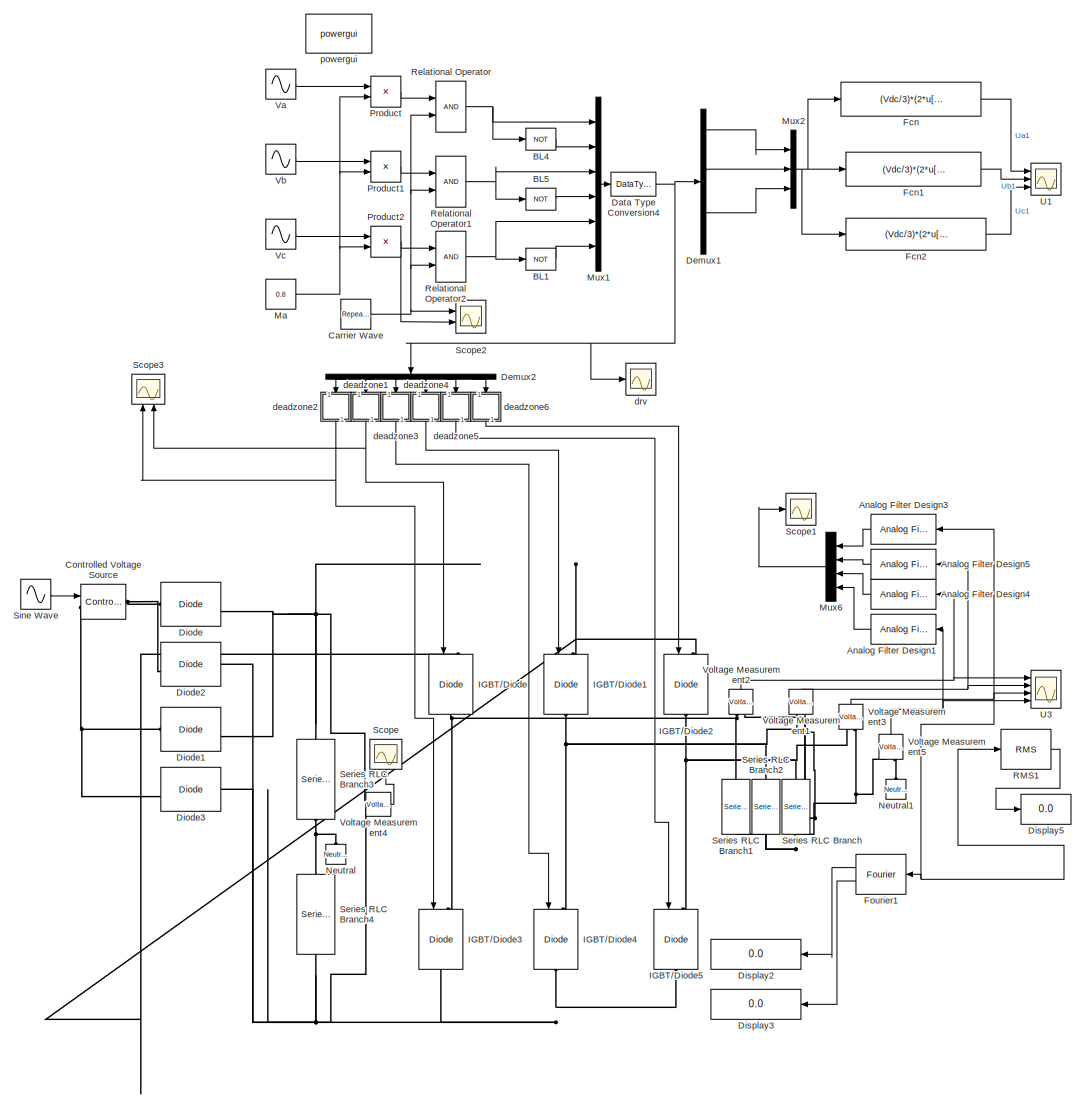
[diagram: root canvas - part 1/1, most of the canvas]
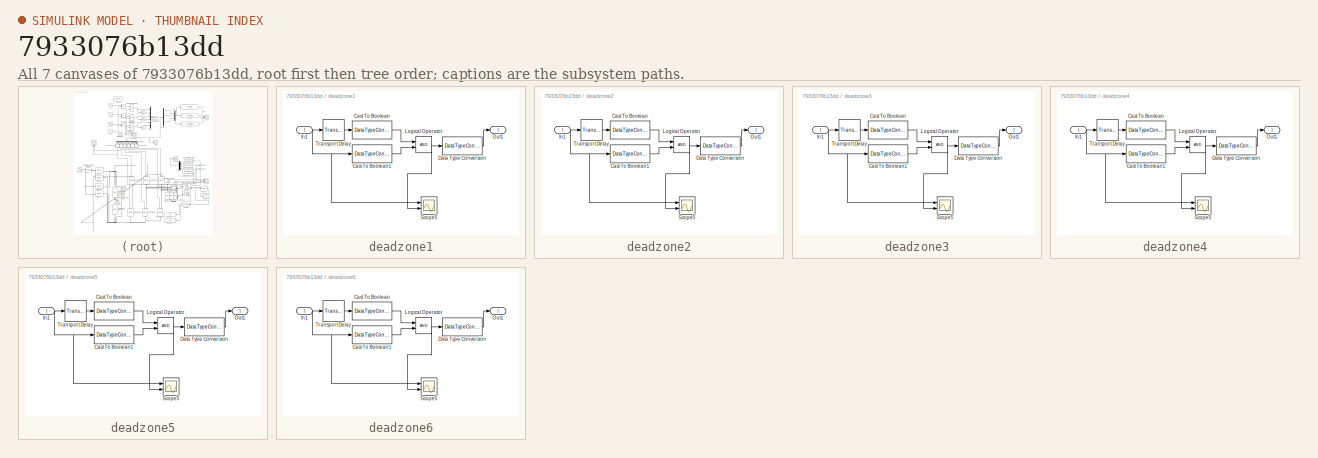
[diagram: thumbnail index - all 7 canvases of the model, root first then tree order]
MODEL slx_7933076b13dd
KIND model
CONFIG AbsTol = auto
CONFIG EnableMultiTasking = on
CONFIG FixedStep = auto
CONFIG InitFcn = f=50;\nVdc=500;\nMf=50;\nFc=f*Mf;\nT_dead=11e-6;\n\n\n\n
CONFIG MaxStep = 0.00001
CONFIG MinStep = auto
CONFIG RelTol = 1e-3
CONFIG SampleTimeConstraint = Unconstrained
CONFIG Solver = FixedStepAuto
CONFIG SolverName = FixedStepAuto
CONFIG StartTime = 0.0
CONFIG StopTime = 0.1
BLOCK [Reference] Analog Filter Design1  REF=dsparch4/Analog
Filter Design
  Ports = [1, 1]
  SourceBlock = dsparch4/Analog\nFilter Design
  SourceProductBaseCode = DS
  SourceType = Analog Filter Design
BLOCK [Reference] Analog Filter Design3  REF=dsparch4/Analog
Filter Design
  Ports = [1, 1]
  SourceBlock = dsparch4/Analog\nFilter Design
  SourceProductBaseCode = DS
  SourceType = Analog Filter Design
BLOCK [Reference] Analog Filter Design4  REF=dsparch4/Analog
Filter Design
  Ports = [1, 1]
  SourceBlock = dsparch4/Analog\nFilter Design
  SourceProductBaseCode = DS
  SourceType = Analog Filter Design
BLOCK [Reference] Analog Filter Design5  REF=dsparch4/Analog
Filter Design
  Ports = [1, 1]
  SourceBlock = dsparch4/Analog\nFilter Design
  SourceProductBaseCode = DS
  SourceType = Analog Filter Design
BLOCK [Logic] BL1
  Inputs = 1
  NameLocation = top
  Operator = NOT
  Ports = [1, 1]
BLOCK [Logic] BL4
  Inputs = 1
  NameLocation = top
  Operator = NOT
  Ports = [1, 1]
BLOCK [Logic] BL5
  Inputs = 1
  NameLocation = top
  Operator = NOT
  Ports = [1, 1]
BLOCK [Reference] Carrier Wave  REF=simulink/Sources/Repeating
Sequence
  Ports = [0, 1]
  SourceBlock = simulink/Sources/Repeating\nSequence
  SourceProductBaseCode = SL
  SourceType = Repeating table
BLOCK [Reference] Controlled Voltage Source  REF=powerlib/Electrical
Sources/Controlled Voltage Source
  Ports = [1, 0, 0, 0, 0, 1, 1]
  SourceBlock = powerlib/Electrical\nSources/Controlled Voltage Source
  SourceProductBaseCode = PS
  SourceType = Controlled Voltage Source
BLOCK [DataTypeConversion] Data Type Conversion4
  OutDataTypeStr = double
BLOCK [Demux] Demux1
  Outputs = 6
  Ports = [1, 6]
BLOCK [Demux] Demux2
  NameLocation = left
  Outputs = 6
  Ports = [1, 6]
BLOCK [Reference] Diode  REF=powerlib/Power
Electronics/Diode
  Ports = [0, 1, 0, 0, 0, 1, 1]
  SourceBlock = powerlib/Power\nElectronics/Diode
  SourceProductBaseCode = PS
  SourceType = Diode
BLOCK [Reference] Diode1  REF=powerlib/Power
Electronics/Diode
  Ports = [0, 1, 0, 0, 0, 1, 1]
  SourceBlock = powerlib/Power\nElectronics/Diode
  SourceProductBaseCode = PS
  SourceType = Diode
BLOCK [Reference] Diode2  REF=powerlib/Power
Electronics/Diode
  Ports = [0, 1, 0, 0, 0, 1, 1]
  SourceBlock = powerlib/Power\nElectronics/Diode
  SourceProductBaseCode = PS
  SourceType = Diode
BLOCK [Reference] Diode3  REF=powerlib/Power
Electronics/Diode
  Ports = [0, 1, 0, 0, 0, 1, 1]
  SourceBlock = powerlib/Power\nElectronics/Diode
  SourceProductBaseCode = PS
  SourceType = Diode
BLOCK [Display] Display2
  Decimation = 1
  Ports = [1]
BLOCK [Display] Display3
  Decimation = 1
  Ports = [1]
BLOCK [Display] Display5
  Decimation = 1
  Ports = [1]
BLOCK [Fcn] Fcn
  Expr = (Vdc/3)*(2*u[1]-u[2]-u[3])
BLOCK [Fcn] Fcn1
  Expr = (Vdc/3)*(2*u[2]-u[1]-u[3])
BLOCK [Fcn] Fcn2
  Expr = (Vdc/3)*(2*u[3]-u[2]-u[1])
BLOCK [Reference] Fourier1  REF=powerlib_meascontrol/Measurements/Fourier
  Ports = [1, 2]
  SourceBlock = powerlib_meascontrol/Measurements/Fourier
  SourceProductBaseCode = PS
  SourceType = Fourier
BLOCK [Reference] IGBT//Diode  REF=powerlib/Power
Electronics/IGBT//Diode
  NameLocation = left
  Ports = [1, 0, 0, 0, 0, 1, 1]
  SourceBlock = powerlib/Power\nElectronics/IGBT//Diode
  SourceProductBaseCode = PS
  SourceType = IGBT/Diode
BLOCK [Reference] IGBT//Diode1  REF=powerlib/Power
Electronics/IGBT//Diode
  NameLocation = left
  Ports = [1, 0, 0, 0, 0, 1, 1]
  SourceBlock = powerlib/Power\nElectronics/IGBT//Diode
  SourceProductBaseCode = PS
  SourceType = IGBT/Diode
BLOCK [Reference] IGBT//Diode2  REF=powerlib/Power
Electronics/IGBT//Diode
  NameLocation = left
  Ports = [1, 0, 0, 0, 0, 1, 1]
  SourceBlock = powerlib/Power\nElectronics/IGBT//Diode
  SourceProductBaseCode = PS
  SourceType = IGBT/Diode
BLOCK [Reference] IGBT//Diode3  REF=powerlib/Power
Electronics/IGBT//Diode
  NameLocation = left
  Ports = [1, 0, 0, 0, 0, 1, 1]
  SourceBlock = powerlib/Power\nElectronics/IGBT//Diode
  SourceProductBaseCode = PS
  SourceType = IGBT/Diode
BLOCK [Reference] IGBT//Diode4  REF=powerlib/Power
Electronics/IGBT//Diode
  NameLocation = left
  Ports = [1, 0, 0, 0, 0, 1, 1]
  SourceBlock = powerlib/Power\nElectronics/IGBT//Diode
  SourceProductBaseCode = PS
  SourceType = IGBT/Diode
BLOCK [Reference] IGBT//Diode5  REF=powerlib/Power
Electronics/IGBT//Diode
  NameLocation = left
  Ports = [1, 0, 0, 0, 0, 1, 1]
  SourceBlock = powerlib/Power\nElectronics/IGBT//Diode
  SourceProductBaseCode = PS
  SourceType = IGBT/Diode
BLOCK [Constant] Ma 
  Value = 0.8
BLOCK [Mux] Mux1
  DisplayOption = bar
  Inputs = 6
  Ports = [6, 1]
BLOCK [Mux] Mux2
  DisplayOption = bar
  Inputs = 3
  Ports = [3, 1]
BLOCK [Mux] Mux6
  DisplayOption = bar
  NameLocation = top
  Ports = [4, 1]
BLOCK [Reference] Neutral  REF=powerlib/Elements/Neutral
  AttributesFormatString = node %<NodeNumber>
  NameLocation = right
  Ports = [0, 0, 0, 0, 0, 1]
  SourceBlock = powerlib/Elements/Neutral
  SourceProductBaseCode = PS
  SourceType = Neutral
BLOCK [Reference] Neutral1  REF=powerlib/Elements/Neutral
  AttributesFormatString = node %<NodeNumber>
  NameLocation = right
  Ports = [0, 0, 0, 0, 0, 1]
  SourceBlock = powerlib/Elements/Neutral
  SourceProductBaseCode = PS
  SourceType = Neutral
BLOCK [Product] Product
  Ports = [2, 1]
BLOCK [Product] Product1
  Ports = [2, 1]
BLOCK [Product] Product2
  Ports = [2, 1]
BLOCK [Reference] RMS1  REF=powerlib_meascontrol/Measurements/RMS
  Ports = [1, 1]
  SourceBlock = powerlib_meascontrol/Measurements/RMS
  SourceProductBaseCode = PS
  SourceType = RMS
BLOCK [RelationalOperator] Relational Operator
  Ports = [2, 1]
BLOCK [RelationalOperator] Relational Operator1
  Ports = [2, 1]
BLOCK [RelationalOperator] Relational Operator2
  Ports = [2, 1]
BLOCK [Scope] Scope
  Floating = off
  NameLocation = right
  NumInputPorts = 1
  Ports = [1]
  ScopeSpecificationString = Simulink.scopes.TimeScopeBlockCfg('CurrentConfiguration', extmgr.ConfigurationSet(extmgr.Configuration('Core','General UI',true),extmgr.Configuration('Core','Source UI',true),extmgr.Configuration('Sources','WiredSimulink',true,'DataLoggingVariableName','ScopeData1'),extmgr.Configuration('Visuals','Time Domain',true,'SerializedDisplays',{struct('MinYLimReal','-77.1483','MaxYLimReal','694.33472','YL...<+1461ch>
BLOCK [Scope] Scope1
  Floating = off
  NumInputPorts = 1
  Ports = [1]
  ScopeSpecificationString = Simulink.scopes.TimeScopeBlockCfg('CurrentConfiguration', extmgr.ConfigurationSet(extmgr.Configuration('Core','General UI',true,'FigureColor',[1 1 1]),extmgr.Configuration('Core','Source UI',true),extmgr.Configuration('Sources','WiredSimulink',true,'DataLoggingVariableName','ScopeData1'),extmgr.Configuration('Visuals','Time Domain',true,'SerializedDisplays',{struct('MinYLimReal','-5902051628452194...<+2908ch>
BLOCK [Scope] Scope2
  Floating = off
  NumInputPorts = 2
  Ports = [2]
  ScopeSpecificationString = Simulink.scopes.TimeScopeBlockCfg('CurrentConfiguration', extmgr.ConfigurationSet(extmgr.Configuration('Core','General UI',true),extmgr.Configuration('Core','Source UI',true),extmgr.Configuration('Sources','WiredSimulink',true,'DataLoggingVariableName','ScopeData1'),extmgr.Configuration('Visuals','Time Domain',true,'SerializedDisplays',{struct('MinYLimReal','-1.25','MaxYLimReal','1.25','YLabelReal...<+1364ch>
BLOCK [Scope] Scope3
  Floating = off
  NameLocation = right
  NumInputPorts = 2
  Ports = [2]
  ScopeSpecificationString = Simulink.scopes.TimeScopeBlockCfg('CurrentConfiguration', extmgr.ConfigurationSet(extmgr.Configuration('Core','General UI',true),extmgr.Configuration('Core','Source UI',true),extmgr.Configuration('Sources','WiredSimulink',true,'DataLoggingVariableName','ScopeData1'),extmgr.Configuration('Visuals','Time Domain',true,'SerializedDisplays',{struct('MinYLimReal','-0.125','MaxYLimReal','1.125','YLabelRe...<+2116ch>
BLOCK [Reference] Series RLC Branch  REF=powerlib/Elements/Series RLC Branch
  NameLocation = left
  Ports = [0, 0, 0, 0, 0, 1, 1]
  SourceBlock = powerlib/Elements/Series RLC Branch
  SourceProductBaseCode = PS
  SourceType = Series RLC Branch
BLOCK [Reference] Series RLC Branch1  REF=powerlib/Elements/Series RLC Branch
  NameLocation = left
  Ports = [0, 0, 0, 0, 0, 1, 1]
  SourceBlock = powerlib/Elements/Series RLC Branch
  SourceProductBaseCode = PS
  SourceType = Series RLC Branch
BLOCK [Reference] Series RLC Branch2  REF=powerlib/Elements/Series RLC Branch
  NameLocation = left
  Ports = [0, 0, 0, 0, 0, 1, 1]
  SourceBlock = powerlib/Elements/Series RLC Branch
  SourceProductBaseCode = PS
  SourceType = Series RLC Branch
BLOCK [Reference] Series RLC Branch3  REF=powerlib/Elements/Series RLC Branch
  NameLocation = left
  Ports = [0, 0, 0, 0, 0, 1, 1]
  SourceBlock = powerlib/Elements/Series RLC Branch
  SourceProductBaseCode = PS
  SourceType = Series RLC Branch
BLOCK [Reference] Series RLC Branch4  REF=powerlib/Elements/Series RLC Branch
  NameLocation = left
  Ports = [0, 0, 0, 0, 0, 1, 1]
  SourceBlock = powerlib/Elements/Series RLC Branch
  SourceProductBaseCode = PS
  SourceType = Series RLC Branch
BLOCK [Sin] Sine Wave
  Amplitude = Vdc*sqrt(2)/1.4
  Frequency = 100*pi
  Ports = [0, 1]
  SampleTime = 0
BLOCK [Scope] U1
  Floating = off
  NumInputPorts = 3
  Ports = [3]
  ScopeSpecificationString = Simulink.scopes.TimeScopeBlockCfg('CurrentConfiguration', extmgr.ConfigurationSet(extmgr.Configuration('Core','General UI',true,'FigureColor',[1 1 1]),extmgr.Configuration('Core','Source UI',true),extmgr.Configuration('Sources','WiredSimulink',true,'DataLogging',true,'DataLoggingVariableName','Uout_cacu','DataLoggingSaveFormat','StructureWithTime','SampleTime','0','DataLoggingDecimation','1','Data...<+3986ch>
BLOCK [Scope] U3
  Floating = off
  NumInputPorts = 4
  Ports = [4]
  ScopeSpecificationString = Simulink.scopes.TimeScopeBlockCfg('CurrentConfiguration', extmgr.ConfigurationSet(extmgr.Configuration('Core','General UI',true,'FigureColor',[1 1 1]),extmgr.Configuration('Core','Source UI',true),extmgr.Configuration('Sources','WiredSimulink',true,'DataLogging',true,'DataLoggingVariableName','Uout_line','DataLoggingSaveFormat','StructureWithTime','SampleTime','0','DataLoggingDecimation','1','Data...<+5099ch>
BLOCK [Sin] Va
  Frequency = 2*pi*f
  Ports = [0, 1]
  SampleTime = 0
BLOCK [Sin] Vb
  Frequency = 2*pi*f
  Phase = -2*pi/3
  Ports = [0, 1]
  SampleTime = 0
BLOCK [Sin] Vc
  Frequency = 2*pi*f
  Phase = 2*pi/3
  Ports = [0, 1]
  SampleTime = 0
BLOCK [Reference] Voltage Measurement1  REF=powerlib/Measurements/Voltage Measurement
  NameLocation = right
  Ports = [0, 1, 0, 0, 0, 2]
  SourceBlock = powerlib/Measurements/Voltage Measurement
  SourceProductBaseCode = PS
  SourceType = Voltage Measurement
  UserDataPersistent = on
BLOCK [Reference] Voltage Measurement2  REF=powerlib/Measurements/Voltage Measurement
  NameLocation = right
  Ports = [0, 1, 0, 0, 0, 2]
  SourceBlock = powerlib/Measurements/Voltage Measurement
  SourceProductBaseCode = PS
  SourceType = Voltage Measurement
  UserDataPersistent = on
BLOCK [Reference] Voltage Measurement3  REF=powerlib/Measurements/Voltage Measurement
  NameLocation = right
  Ports = [0, 1, 0, 0, 0, 2]
  SourceBlock = powerlib/Measurements/Voltage Measurement
  SourceProductBaseCode = PS
  SourceType = Voltage Measurement
  UserDataPersistent = on
BLOCK [Reference] Voltage Measurement4  REF=powerlib/Measurements/Voltage Measurement
  Ports = [0, 1, 0, 0, 0, 2]
  SourceBlock = powerlib/Measurements/Voltage Measurement
  SourceProductBaseCode = PS
  SourceType = Voltage Measurement
  UserDataPersistent = on
BLOCK [Reference] Voltage Measurement5  REF=powerlib/Measurements/Voltage Measurement
  NameLocation = right
  Ports = [0, 1, 0, 0, 0, 2]
  SourceBlock = powerlib/Measurements/Voltage Measurement
  SourceProductBaseCode = PS
  SourceType = Voltage Measurement
  UserDataPersistent = on
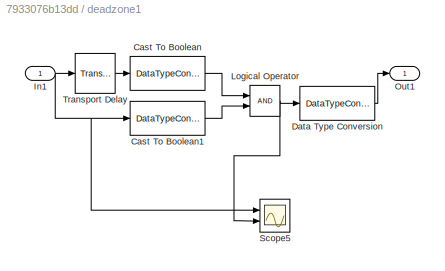
BLOCK [SubSystem] deadzone1
  NameLocation = left
  Ports = [1, 1]
  RequestExecContextInheritance = off
BLOCK [DataTypeConversion] deadzone1/Cast To Boolean
  OutDataTypeStr = boolean
  RndMeth = Floor
  SaturateOnIntegerOverflow = off
BLOCK [DataTypeConversion] deadzone1/Cast To Boolean1
  OutDataTypeStr = boolean
  RndMeth = Floor
  SaturateOnIntegerOverflow = off
BLOCK [DataTypeConversion] deadzone1/Data Type Conversion
  OutDataTypeStr = double
  RndMeth = Floor
  SaturateOnIntegerOverflow = off
BLOCK [Inport] deadzone1/In1
BLOCK [Logic] deadzone1/Logical Operator
  AllPortsSameDT = off
  OutDataTypeStr = boolean
  Ports = [2, 1]
BLOCK [Outport] deadzone1/Out1
  VectorParamsAs1DForOutWhenUnconnected = off
BLOCK [Scope] deadzone1/Scope5
  Floating = off
  NumInputPorts = 2
  Ports = [2]
  ScopeSpecificationString = Simulink.scopes.TimeScopeBlockCfg('CurrentConfiguration', extmgr.ConfigurationSet(extmgr.Configuration('Core','General UI',true),extmgr.Configuration('Core','Source UI',true),extmgr.Configuration('Sources','WiredSimulink',true,'DataLoggingVariableName','ScopeData2'),extmgr.Configuration('Visuals','Time Domain',true,'SerializedDisplays',{struct('MinYLimReal','-0.125','MaxYLimReal','1.125','YLabelRe...<+2090ch>  <repeated x5 — deduplicated; at blocks: Scope5>
BLOCK [TransportDelay] deadzone1/Transport Delay
  DelayTime = T_dead
  Ports = [1, 1]
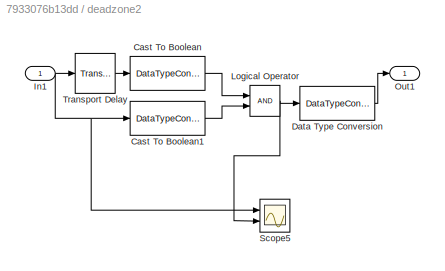
BLOCK [SubSystem] deadzone2
  NameLocation = left
  Ports = [1, 1]
  RequestExecContextInheritance = off
BLOCK [DataTypeConversion] deadzone2/Cast To Boolean
  OutDataTypeStr = boolean
  RndMeth = Floor
  SaturateOnIntegerOverflow = off
BLOCK [DataTypeConversion] deadzone2/Cast To Boolean1
  OutDataTypeStr = boolean
  RndMeth = Floor
  SaturateOnIntegerOverflow = off
BLOCK [DataTypeConversion] deadzone2/Data Type Conversion
  OutDataTypeStr = double
  RndMeth = Floor
  SaturateOnIntegerOverflow = off
BLOCK [Inport] deadzone2/In1
BLOCK [Logic] deadzone2/Logical Operator
  AllPortsSameDT = off
  OutDataTypeStr = boolean
  Ports = [2, 1]
BLOCK [Outport] deadzone2/Out1
  VectorParamsAs1DForOutWhenUnconnected = off
BLOCK [Scope] deadzone2/Scope5
  Floating = off
  NumInputPorts = 2
  Ports = [2]
  ScopeSpecificationString = Simulink.scopes.TimeScopeBlockCfg('CurrentConfiguration', extmgr.ConfigurationSet(extmgr.Configuration('Core','General UI',true),extmgr.Configuration('Core','Source UI',true),extmgr.Configuration('Sources','WiredSimulink',true,'DataLoggingVariableName','ScopeData2'),extmgr.Configuration('Visuals','Time Domain',true,'SerializedDisplays',{struct('MinYLimReal','-0.125','MaxYLimReal','1.125','YLabelRe...<+2115ch>
BLOCK [TransportDelay] deadzone2/Transport Delay
  DelayTime = T_dead
  Ports = [1, 1]
BLOCK [SubSystem] deadzone3
  NameLocation = left
  Ports = [1, 1]
  RequestExecContextInheritance = off
BLOCK [DataTypeConversion] deadzone3/Cast To Boolean
  OutDataTypeStr = boolean
  RndMeth = Floor
  SaturateOnIntegerOverflow = off
BLOCK [DataTypeConversion] deadzone3/Cast To Boolean1
  OutDataTypeStr = boolean
  RndMeth = Floor
  SaturateOnIntegerOverflow = off
BLOCK [DataTypeConversion] deadzone3/Data Type Conversion
  OutDataTypeStr = double
  RndMeth = Floor
  SaturateOnIntegerOverflow = off
BLOCK [Inport] deadzone3/In1
BLOCK [Logic] deadzone3/Logical Operator
  AllPortsSameDT = off
  OutDataTypeStr = boolean
  Ports = [2, 1]
BLOCK [Outport] deadzone3/Out1
  VectorParamsAs1DForOutWhenUnconnected = off
BLOCK [Scope] deadzone3/Scope5
  Floating = off
  NumInputPorts = 2
  Ports = [2]
BLOCK [TransportDelay] deadzone3/Transport Delay
  DelayTime = T_dead
  Ports = [1, 1]
BLOCK [SubSystem] deadzone4
  NameLocation = left
  Ports = [1, 1]
  RequestExecContextInheritance = off
BLOCK [DataTypeConversion] deadzone4/Cast To Boolean
  OutDataTypeStr = boolean
  RndMeth = Floor
  SaturateOnIntegerOverflow = off
BLOCK [DataTypeConversion] deadzone4/Cast To Boolean1
  OutDataTypeStr = boolean
  RndMeth = Floor
  SaturateOnIntegerOverflow = off
BLOCK [DataTypeConversion] deadzone4/Data Type Conversion
  OutDataTypeStr = double
  RndMeth = Floor
  SaturateOnIntegerOverflow = off
BLOCK [Inport] deadzone4/In1
BLOCK [Logic] deadzone4/Logical Operator
  AllPortsSameDT = off
  OutDataTypeStr = boolean
  Ports = [2, 1]
BLOCK [Outport] deadzone4/Out1
  VectorParamsAs1DForOutWhenUnconnected = off
BLOCK [Scope] deadzone4/Scope5
  Floating = off
  NumInputPorts = 2
  Ports = [2]
BLOCK [TransportDelay] deadzone4/Transport Delay
  DelayTime = T_dead
  Ports = [1, 1]
BLOCK [SubSystem] deadzone5
  NameLocation = left
  Ports = [1, 1]
  RequestExecContextInheritance = off
BLOCK [DataTypeConversion] deadzone5/Cast To Boolean
  OutDataTypeStr = boolean
  RndMeth = Floor
  SaturateOnIntegerOverflow = off
BLOCK [DataTypeConversion] deadzone5/Cast To Boolean1
  OutDataTypeStr = boolean
  RndMeth = Floor
  SaturateOnIntegerOverflow = off
BLOCK [DataTypeConversion] deadzone5/Data Type Conversion
  OutDataTypeStr = double
  RndMeth = Floor
  SaturateOnIntegerOverflow = off
BLOCK [Inport] deadzone5/In1
BLOCK [Logic] deadzone5/Logical Operator
  AllPortsSameDT = off
  OutDataTypeStr = boolean
  Ports = [2, 1]
BLOCK [Outport] deadzone5/Out1
  VectorParamsAs1DForOutWhenUnconnected = off
BLOCK [Scope] deadzone5/Scope5
  Floating = off
  NumInputPorts = 2
  Ports = [2]
BLOCK [TransportDelay] deadzone5/Transport Delay
  DelayTime = T_dead
  Ports = [1, 1]
BLOCK [SubSystem] deadzone6
  NameLocation = left
  Ports = [1, 1]
  RequestExecContextInheritance = off
BLOCK [DataTypeConversion] deadzone6/Cast To Boolean
  OutDataTypeStr = boolean
  RndMeth = Floor
  SaturateOnIntegerOverflow = off
BLOCK [DataTypeConversion] deadzone6/Cast To Boolean1
  OutDataTypeStr = boolean
  RndMeth = Floor
  SaturateOnIntegerOverflow = off
BLOCK [DataTypeConversion] deadzone6/Data Type Conversion
  OutDataTypeStr = double
  RndMeth = Floor
  SaturateOnIntegerOverflow = off
BLOCK [Inport] deadzone6/In1
BLOCK [Logic] deadzone6/Logical Operator
  AllPortsSameDT = off
  OutDataTypeStr = boolean
  Ports = [2, 1]
BLOCK [Outport] deadzone6/Out1
  VectorParamsAs1DForOutWhenUnconnected = off
BLOCK [Scope] deadzone6/Scope5
  Floating = off
  NumInputPorts = 2
  Ports = [2]
BLOCK [TransportDelay] deadzone6/Transport Delay
  DelayTime = T_dead
  Ports = [1, 1]
BLOCK [Scope] drv
  Floating = off
  NumInputPorts = 1
  Ports = [1]
  ScopeSpecificationString = Simulink.scopes.TimeScopeBlockCfg('CurrentConfiguration', extmgr.ConfigurationSet(extmgr.Configuration('Core','General UI',true,'FigureColor',[1 1 1]),extmgr.Configuration('Core','Source UI',true),extmgr.Configuration('Sources','WiredSimulink',true,'DataLoggingVariableName','ScopeData2','DataLoggingSaveFormat','StructureWithTime','SampleTime','0','DataLoggingDecimation','1','DataLoggingDecimateDat...<+5585ch>
BLOCK [Reference] powergui  REF=powerlib/powergui
  Ports = []
  Priority = 1
  SourceBlock = powerlib/powergui
  SourceProductBaseCode = PS
  SourceType = PSB option menu block
LINE Analog Filter Design1:1 -> Mux6:4
LINE Analog Filter Design3:1 -> Mux6:1
LINE Analog Filter Design4:1 -> Mux6:3
LINE Analog Filter Design5:1 -> Mux6:2
LINE BL1:1 -> Mux1:6
LINE BL4:1 -> Mux1:2
LINE BL5:1 -> Mux1:4
NET Carrier Wave:1 -> Relational Operator1:2, Relational Operator2:2, Relational Operator:2, Scope2:1
NET Data Type Conversion4:1 -> Demux1:1, Demux2:1, drv:1
LINE Demux1:1 -> Mux2:1
LINE Demux1:3 -> Mux2:2
LINE Demux1:5 -> Mux2:3
LINE Demux2:1 -> deadzone2:1
LINE Demux2:2 -> deadzone1:1
LINE Demux2:3 -> deadzone3:1
LINE Demux2:4 -> deadzone4:1
LINE Demux2:5 -> deadzone5:1
LINE Demux2:6 -> deadzone6:1
LINE Fcn1:1 -> U1:2
LINE Fcn2:1 -> U1:3
LINE Fcn:1 -> U1:1
LINE Fourier1:1 -> Display2:1
LINE Fourier1:2 -> Display3:1
NET Ma :1 -> Product1:2, Product2:2, Product:2
LINE Mux1:1 -> Data Type Conversion4:1
NET Mux2:1 -> Fcn1:1, Fcn2:1, Fcn:1
LINE Mux6:1 -> Scope1:1
LINE Product1:1 -> Relational Operator1:1
NET Product2:1 -> Relational Operator2:1, Scope2:2
LINE Product:1 -> Relational Operator:1
LINE RMS1:1 -> Display5:1
NET Relational Operator1:1 -> BL5:1, Mux1:3
NET Relational Operator2:1 -> BL1:1, Mux1:5
NET Relational Operator:1 -> BL4:1, Mux1:1
LINE Sine Wave:1 -> Controlled Voltage Source:1
LINE Va:1 -> Product:1
LINE Vb:1 -> Product1:1
LINE Vc:1 -> Product2:1
NET Voltage Measurement1:1 -> Analog Filter Design5:1, U3:2
NET Voltage Measurement2:1 -> Analog Filter Design4:1, U3:1
NET Voltage Measurement3:1 -> Analog Filter Design3:1, Fourier1:1, RMS1:1, U3:3
LINE Voltage Measurement4:1 -> Scope:1
NET Voltage Measurement5:1 -> Analog Filter Design1:1, U3:4
LINE deadzone1/Cast To Boolean1:1 -> deadzone1/Logical Operator:2
LINE deadzone1/Cast To Boolean:1 -> deadzone1/Logical Operator:1
LINE deadzone1/Data Type Conversion:1 -> deadzone1/Out1:1
NET deadzone1/In1:1 -> deadzone1/Cast To Boolean1:1, deadzone1/Scope5:1, deadzone1/Transport Delay:1
NET deadzone1/Logical Operator:1 -> deadzone1/Data Type Conversion:1, deadzone1/Scope5:2
LINE deadzone1/Transport Delay:1 -> deadzone1/Cast To Boolean:1
NET deadzone1:1 -> IGBT//Diode:1, Scope3:2
LINE deadzone2/Cast To Boolean1:1 -> deadzone2/Logical Operator:2
LINE deadzone2/Cast To Boolean:1 -> deadzone2/Logical Operator:1
LINE deadzone2/Data Type Conversion:1 -> deadzone2/Out1:1
NET deadzone2/In1:1 -> deadzone2/Cast To Boolean1:1, deadzone2/Scope5:1, deadzone2/Transport Delay:1
NET deadzone2/Logical Operator:1 -> deadzone2/Data Type Conversion:1, deadzone2/Scope5:2
LINE deadzone2/Transport Delay:1 -> deadzone2/Cast To Boolean:1
NET deadzone2:1 -> IGBT//Diode3:1, Scope3:1
LINE deadzone3/Cast To Boolean1:1 -> deadzone3/Logical Operator:2
LINE deadzone3/Cast To Boolean:1 -> deadzone3/Logical Operator:1
LINE deadzone3/Data Type Conversion:1 -> deadzone3/Out1:1
NET deadzone3/In1:1 -> deadzone3/Cast To Boolean1:1, deadzone3/Scope5:1, deadzone3/Transport Delay:1
NET deadzone3/Logical Operator:1 -> deadzone3/Data Type Conversion:1, deadzone3/Scope5:2
LINE deadzone3/Transport Delay:1 -> deadzone3/Cast To Boolean:1
LINE deadzone3:1 -> IGBT//Diode4:1
LINE deadzone4/Cast To Boolean1:1 -> deadzone4/Logical Operator:2
LINE deadzone4/Cast To Boolean:1 -> deadzone4/Logical Operator:1
LINE deadzone4/Data Type Conversion:1 -> deadzone4/Out1:1
NET deadzone4/In1:1 -> deadzone4/Cast To Boolean1:1, deadzone4/Scope5:1, deadzone4/Transport Delay:1
NET deadzone4/Logical Operator:1 -> deadzone4/Data Type Conversion:1, deadzone4/Scope5:2
LINE deadzone4/Transport Delay:1 -> deadzone4/Cast To Boolean:1
LINE deadzone4:1 -> IGBT//Diode1:1
LINE deadzone5/Cast To Boolean1:1 -> deadzone5/Logical Operator:2
LINE deadzone5/Cast To Boolean:1 -> deadzone5/Logical Operator:1
LINE deadzone5/Data Type Conversion:1 -> deadzone5/Out1:1
NET deadzone5/In1:1 -> deadzone5/Cast To Boolean1:1, deadzone5/Scope5:1, deadzone5/Transport Delay:1
NET deadzone5/Logical Operator:1 -> deadzone5/Data Type Conversion:1, deadzone5/Scope5:2
LINE deadzone5/Transport Delay:1 -> deadzone5/Cast To Boolean:1
LINE deadzone5:1 -> IGBT//Diode5:1
LINE deadzone6/Cast To Boolean1:1 -> deadzone6/Logical Operator:2
LINE deadzone6/Cast To Boolean:1 -> deadzone6/Logical Operator:1
LINE deadzone6/Data Type Conversion:1 -> deadzone6/Out1:1
NET deadzone6/In1:1 -> deadzone6/Cast To Boolean1:1, deadzone6/Scope5:1, deadzone6/Transport Delay:1
NET deadzone6/Logical Operator:1 -> deadzone6/Data Type Conversion:1, deadzone6/Scope5:2
LINE deadzone6/Transport Delay:1 -> deadzone6/Cast To Boolean:1
LINE deadzone6:1 -> IGBT//Diode2:1
PNET net1: Controlled Voltage Source:LConn1 -- Diode1:LConn1 -- Diode3:RConn1
PNET net2: Controlled Voltage Source:RConn1 -- Diode2:RConn1 -- Diode:LConn1
PNET net3: Diode1:RConn1 -- Diode:RConn1 -- IGBT//Diode1:LConn1 -- IGBT//Diode2:LConn1 -- IGBT//Diode:LConn1 -- Series RLC Branch3:LConn1 -- Voltage Measurement4:LConn1
PNET net4: Diode2:LConn1 -- Diode3:LConn1 -- IGBT//Diode3:RConn1 -- IGBT//Diode4:RConn1 -- IGBT//Diode5:RConn1 -- Series RLC Branch4:RConn1 -- Voltage Measurement4:LConn2
PNET net5: IGBT//Diode1:RConn1 -- IGBT//Diode4:LConn1 -- Series RLC Branch2:LConn1 -- Voltage Measurement1:LConn1
PNET net6: IGBT//Diode2:RConn1 -- IGBT//Diode5:LConn1 -- Series RLC Branch:LConn1 -- Voltage Measurement3:LConn1
PNET net7: IGBT//Diode3:LConn1 -- IGBT//Diode:RConn1 -- Series RLC Branch1:LConn1 -- Voltage Measurement2:LConn1
PLINE Neutral1:LConn1 -- Voltage Measurement5:LConn2
PNET net8: Neutral:LConn1 -- Series RLC Branch3:RConn1 -- Series RLC Branch4:LConn1
PNET net9: Series RLC Branch1:RConn1 -- Series RLC Branch2:RConn1 -- Series RLC Branch:RConn1 -- Voltage Measurement1:LConn2 -- Voltage Measurement2:LConn2 -- Voltage Measurement3:LConn2 -- Voltage Measurement5:LConn1
note: NET lines group one-source signal fan-out (src -> all destinations, sorted); 1:1 wires keep LINE; PNET lines group multi-terminal physical nets as a canonical sorted terminal list (undirected conserving connections); 2-terminal nets keep the pairwise PLINE form
